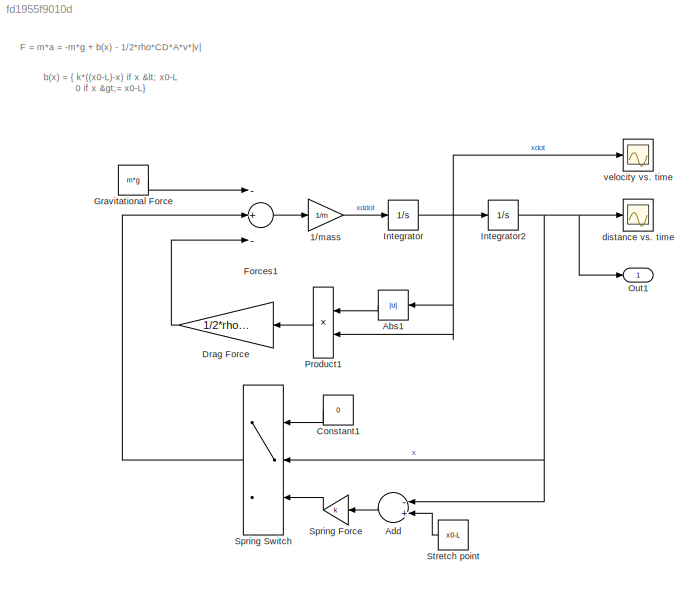
MODEL slx_fd1955f9010d
KIND model
CONFIG AbsTol = auto
CONFIG EnableMultiTasking = on
CONFIG FixedStep = auto
CONFIG MaxStep = auto
CONFIG MinStep = auto
CONFIG PreLoadFcn = % Execute script to load parameters\nbungeeParams;
CONFIG RelTol = 1e-3
CONFIG SampleTimeConstraint = Unconstrained
CONFIG Solver = VariableStepAuto
CONFIG SolverName = VariableStepAuto
CONFIG StartTime = 0.0
CONFIG StopTime = 50
BLOCK [Gain] 1//mass
  Gain = 1/m
BLOCK [Abs] Abs1
  SaturateOnIntegerOverflow = off
BLOCK [Sum] Add
  InputSameDT = off
  Inputs = -+
  OutDataTypeStr = Inherit: Inherit via internal rule
  Ports = [2, 1]
  SaturateOnIntegerOverflow = off
BLOCK [Constant] Constant1
  Value = 0
BLOCK [Gain] Drag Force
  Gain = 1/2*rho*CD*A
  OutDataTypeStr = Inherit: Inherit via internal rule
  ParamDataTypeStr = Inherit: Inherit via internal rule
  SaturateOnIntegerOverflow = off
BLOCK [Sum] Forces1
  Inputs = -+-
  Ports = [3, 1]
BLOCK [Constant] Gravitational Force
  Value = m*g
BLOCK [Integrator] Integrator
  AttributesFormatString = IC: %<InitialCondition>
  Ports = [1, 1]
BLOCK [Integrator] Integrator2
  AttributesFormatString = IC: %<InitialCondition>
  InitialCondition = x0
  Ports = [1, 1]
BLOCK [Outport] Out1
  IconDisplay = Port number
BLOCK [Product] Product1
  InputSameDT = off
  OutDataTypeStr = Inherit: Inherit via internal rule
  Ports = [2, 1]
  SaturateOnIntegerOverflow = off
BLOCK [Gain] Spring Force
  Gain = k
BLOCK [Switch] Spring Switch
  AttributesFormatString = Threshold = %<Threshold>
  Threshold = x0-L
BLOCK [Constant] Stretch point
  Value = x0-L
BLOCK [Scope] distance vs. time
  Floating = off
  NumInputPorts = 1
  Ports = [1]
  ScopeSpecificationString = Simulink.scopes.TimeScopeBlockCfg('CurrentConfiguration', extmgr.ConfigurationSet(extmgr.Configuration('Core','General UI',true),extmgr.Configuration('Core','Source UI',true),extmgr.Configuration('Sources','WiredSimulink',true),extmgr.Configuration('Visuals','Time Domain',true,'SerializedDisplays',{struct('MinYLimReal','70.00000','MaxYLimReal','90.00000','YLabelReal','','MinYLimMag','70.00000','Ma...<+1522ch>
BLOCK [Scope] velocity vs. time
  Floating = off
  NumInputPorts = 1
  Ports = [1]
  ScopeSpecificationString = Simulink.scopes.TimeScopeBlockCfg('CurrentConfiguration', extmgr.ConfigurationSet(extmgr.Configuration('Core','General UI',true),extmgr.Configuration('Core','Source UI',true),extmgr.Configuration('Sources','WiredSimulink',true,'DataLoggingVariableName','ScopeData1'),extmgr.Configuration('Visuals','Time Domain',true,'SerializedDisplays',{struct('MinYLimReal','-1.00000','MaxYLimReal','1.00000','YLab...<+1558ch>
ANNOTATION (root): b(x) = { k*((x0-L)-x) if x < x0-L 0 if x >= x0-L}
ANNOTATION (root): F = m*a = -m*g + b(x) - 1/2*rho*CD*A*v*|v|
LINE 1//mass:1 -> Integrator:1
LINE Abs1:1 -> Product1:1
LINE Add:1 -> Spring Force:1
LINE Constant1:1 -> Spring Switch:1
LINE Drag Force:1 -> Forces1:3
LINE Forces1:1 -> 1//mass:1
LINE Gravitational Force:1 -> Forces1:1
NET Integrator2:1 -> Add:1, Out1:1, Spring Switch:2, distance vs. time:1
NET Integrator:1 -> Abs1:1, Integrator2:1, Product1:2, velocity vs. time:1
LINE Product1:1 -> Drag Force:1
LINE Spring Force:1 -> Spring Switch:3
LINE Spring Switch:1 -> Forces1:2
LINE Stretch point:1 -> Add:2
note: NET lines group one-source signal fan-out (src -> all destinations, sorted); 1:1 wires keep LINE
